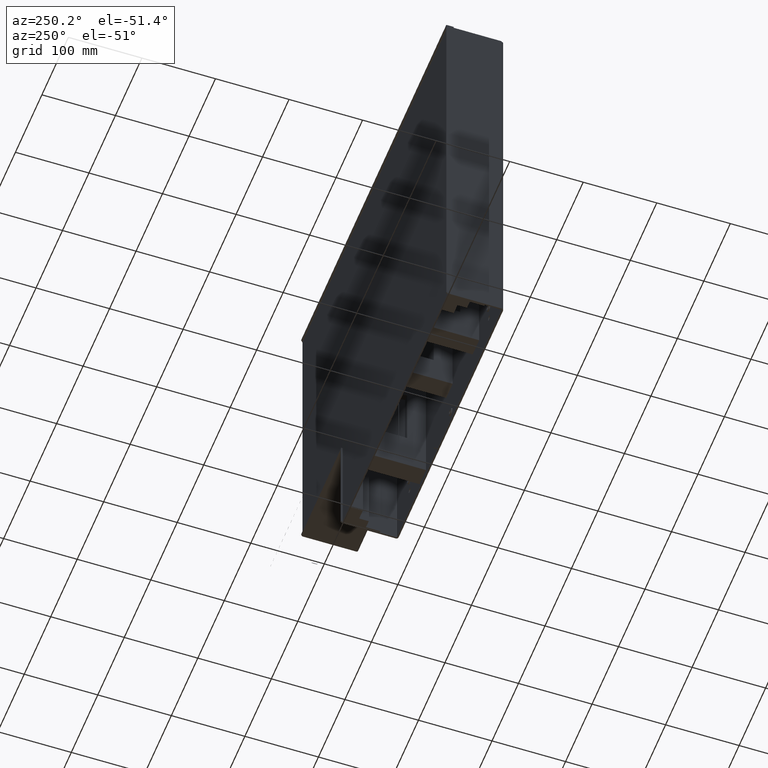
[diagram: clean part render]
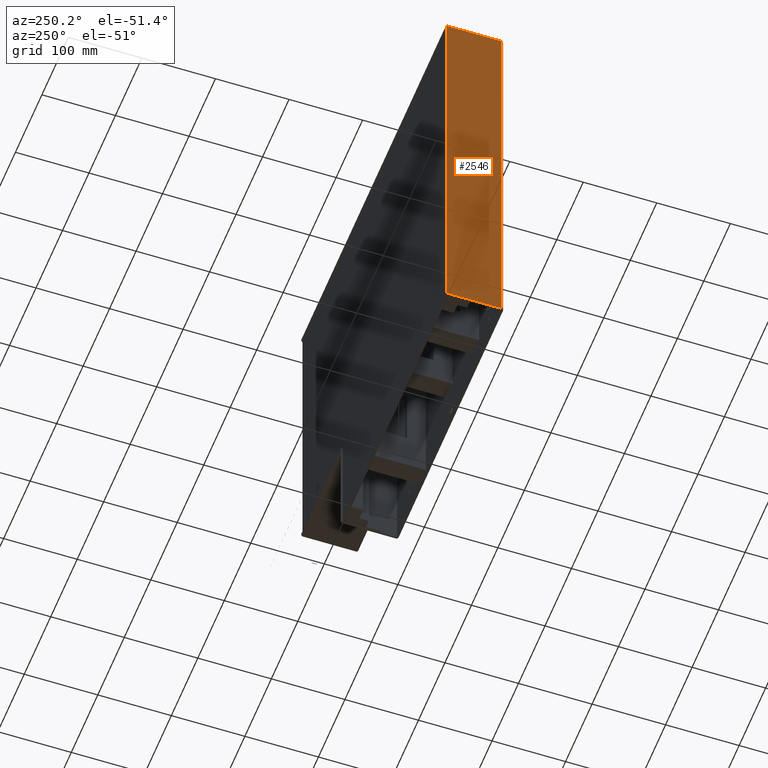
[diagram: same view with one face highlighted and labeled with its STEP entity id]
A machine part, auxiliary view. The second image highlights one B-rep face of the part: STEP entity #2546.
In plain terms, the highlighted planar face has unit normal (1, 0, 0).
Its self-contained STEP definition (entity closure, byte-faithful):
#867=DIRECTION('',(0.E0,0.E0,-1.E0));
#868=VECTOR('',#867,9.999999999998E-1);
#869=CARTESIAN_POINT('',(-2.E2,3.E0,5.48E2));
#870=LINE('',#869,#868);
#874=DIRECTION('',(0.E0,0.E0,1.E0));
#875=VECTOR('',#874,5.47E2);
#876=CARTESIAN_POINT('',(-2.E2,3.E0,0.E0));
#877=LINE('',#876,#875);
#881=DIRECTION('',(0.E0,7.071067811866E-1,7.071067811865E-1));
#882=VECTOR('',#881,2.828427124746E0);
#883=CARTESIAN_POINT('',(-2.E2,7.6E1,0.E0));
#884=LINE('',#883,#882);
#888=DIRECTION('',(0.E0,1.E0,0.E0));
#889=VECTOR('',#888,7.5E1);
#890=CARTESIAN_POINT('',(-2.E2,3.E0,5.48E2));
#891=LINE('',#890,#889);
#902=DIRECTION('',(0.E0,1.E0,0.E0));
#903=VECTOR('',#902,7.3E1);
#904=CARTESIAN_POINT('',(-2.E2,3.E0,0.E0));
#905=LINE('',#904,#903);
#951=DIRECTION('',(0.E0,0.E0,1.E0));
#952=VECTOR('',#951,5.46E2);
#953=CARTESIAN_POINT('',(-2.E2,7.8E1,2.E0));
#954=LINE('',#953,#952);
#1898=CARTESIAN_POINT('',(-2.E2,7.6E1,0.E0));
#1899=CARTESIAN_POINT('',(-2.E2,7.8E1,2.E0));
#1900=VERTEX_POINT('',#1898);
#1901=VERTEX_POINT('',#1899);
#1906=CARTESIAN_POINT('',(-2.E2,3.E0,0.E0));
#1907=VERTEX_POINT('',#1906);
#1966=CARTESIAN_POINT('',(-2.E2,7.8E1,5.48E2));
#1967=VERTEX_POINT('',#1966);
#2086=CARTESIAN_POINT('',(-2.E2,3.E0,5.48E2));
#2087=CARTESIAN_POINT('',(-2.E2,3.E0,5.47E2));
#2088=VERTEX_POINT('',#2086);
#2089=VERTEX_POINT('',#2087);
#2529=CARTESIAN_POINT('',(-2.E2,3.E0,0.E0));
#2530=DIRECTION('',(1.E0,0.E0,0.E0));
#2531=DIRECTION('',(0.E0,1.E0,0.E0));
#2532=AXIS2_PLACEMENT_3D('',#2529,#2530,#2531);
#2533=PLANE('',#2532);
#2534=ORIENTED_EDGE('',*,*,#2519,.T.);
#2535=ORIENTED_EDGE('',*,*,#2494,.F.);
#2537=ORIENTED_EDGE('',*,*,#2536,.T.);
#2539=ORIENTED_EDGE('',*,*,#2538,.T.);
#2541=ORIENTED_EDGE('',*,*,#2540,.T.);
#2543=ORIENTED_EDGE('',*,*,#2542,.F.);
#2544=EDGE_LOOP('',(#2534,#2535,#2537,#2539,#2541,#2543));
#2545=FACE_OUTER_BOUND('',#2544,.F.);
#2494=EDGE_CURVE('',#1907,#2089,#877,.T.);
#2519=EDGE_CURVE('',#2088,#2089,#870,.T.);
#2536=EDGE_CURVE('',#1907,#1900,#905,.T.);
#2538=EDGE_CURVE('',#1900,#1901,#884,.T.);
#2540=EDGE_CURVE('',#1901,#1967,#954,.T.);
#2542=EDGE_CURVE('',#2088,#1967,#891,.T.);
#2546=ADVANCED_FACE('',(#2545),#2533,.F.);